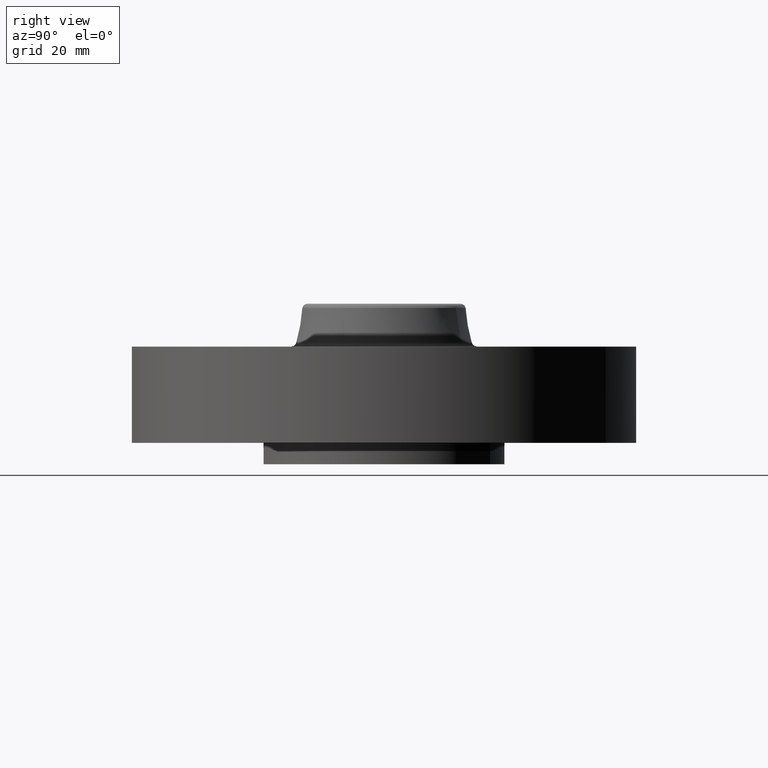
[diagram: clean part render]
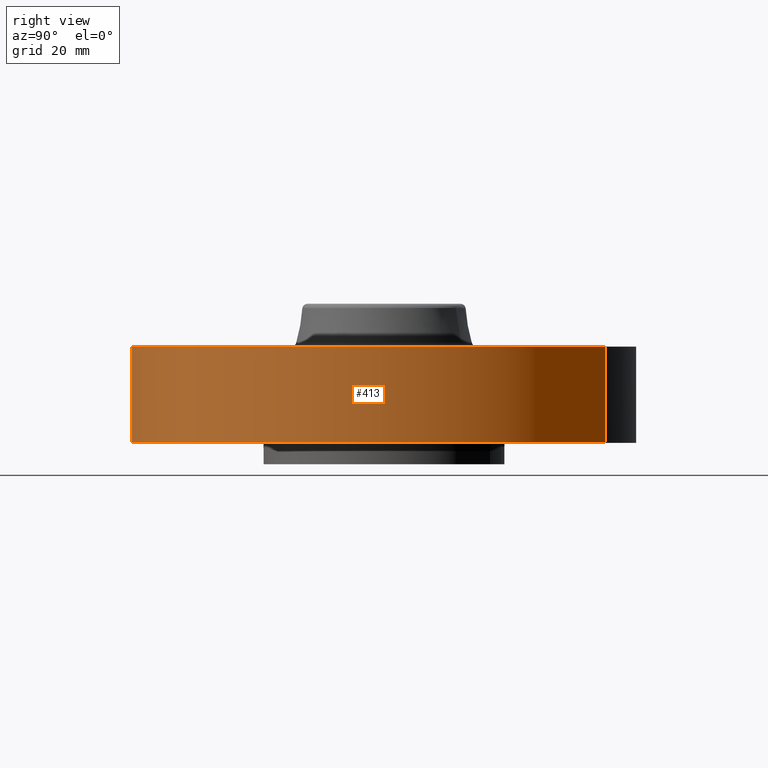
[diagram: same view with one face highlighted and labeled with its STEP entity id]
A machine part, right view. The second image highlights one B-rep face of the part: STEP entity #413.
In plain terms, the highlighted cylindrical surface (partial cylindrical patch) has radius 74.676 mm, axis along (0, 0, -1).
Its self-contained STEP definition (entity closure, byte-faithful):
#287=AXIS2_PLACEMENT_3D('Circle Axis2P3D',#285,#286,$) ;
#374=AXIS2_PLACEMENT_3D('Cylinder Axis2P3D',#371,#372,#373) ;
#404=AXIS2_PLACEMENT_3D('Circle Axis2P3D',#402,#403,$) ;
#280=CARTESIAN_POINT('Vertex',(-1.4095110835,-2.58009273197,2.79741234551E-016)) ;
#282=CARTESIAN_POINT('Vertex',(1.4095110835,2.58009273197,2.79741234551E-016)) ;
#285=CARTESIAN_POINT('Axis2P3D Location',(0.,0.,0.)) ;
#371=CARTESIAN_POINT('Axis2P3D Location',(0.,0.,0.685000000003)) ;
#376=CARTESIAN_POINT('Line Origine',(-1.4095110835,-2.58009273197,0.560000000002)) ;
#380=CARTESIAN_POINT('Vertex',(-1.4095110835,-2.58009273197,1.12)) ;
#387=CARTESIAN_POINT('Vertex',(1.4095110835,2.58009273197,1.12)) ;
#390=CARTESIAN_POINT('Line Origine',(1.4095110835,2.58009273197,0.560000000002)) ;
#402=CARTESIAN_POINT('Axis2P3D Location',(0.,0.,1.12)) ;
#286=DIRECTION('Axis2P3D Direction',(0.,0.,-0.0393700787402)) ;
#372=DIRECTION('Axis2P3D Direction',(0.,0.,-0.0393700787402)) ;
#373=DIRECTION('Axis2P3D XDirection',(0.0188750212049,0.0345504945626,0.)) ;
#377=DIRECTION('Vector Direction',(0.,0.,-0.0393700787402)) ;
#391=DIRECTION('Vector Direction',(0.,0.,-0.0393700787402)) ;
#403=DIRECTION('Axis2P3D Direction',(0.,0.,-0.0393700787402)) ;
#378=VECTOR('Line Direction',#377,0.0393700787402) ;
#392=VECTOR('Line Direction',#391,0.0393700787402) ;
#408=ORIENTED_EDGE('',*,*,#289,.F.) ;
#409=ORIENTED_EDGE('',*,*,#394,.T.) ;
#410=ORIENTED_EDGE('',*,*,#406,.T.) ;
#411=ORIENTED_EDGE('',*,*,#382,.F.) ;
#413=ADVANCED_FACE('PartBody',(#412),#375,.T.) ;
#288=CIRCLE('generated circle',#287,2.94000000001) ;
#405=CIRCLE('generated circle',#404,2.94000000001) ;
#375=CYLINDRICAL_SURFACE('generated cylinder',#374,2.94000000001) ;
#289=EDGE_CURVE('',#283,#281,#288,.T.) ;
#382=EDGE_CURVE('',#281,#381,#379,.F.) ;
#394=EDGE_CURVE('',#283,#388,#393,.F.) ;
#406=EDGE_CURVE('',#388,#381,#405,.T.) ;
#407=EDGE_LOOP('',(#408,#409,#410,#411)) ;
#412=FACE_OUTER_BOUND('',#407,.T.) ;
#379=LINE('Line',#376,#378) ;
#393=LINE('Line',#390,#392) ;
#281=VERTEX_POINT('',#280) ;
#283=VERTEX_POINT('',#282) ;
#381=VERTEX_POINT('',#380) ;
#388=VERTEX_POINT('',#387) ;